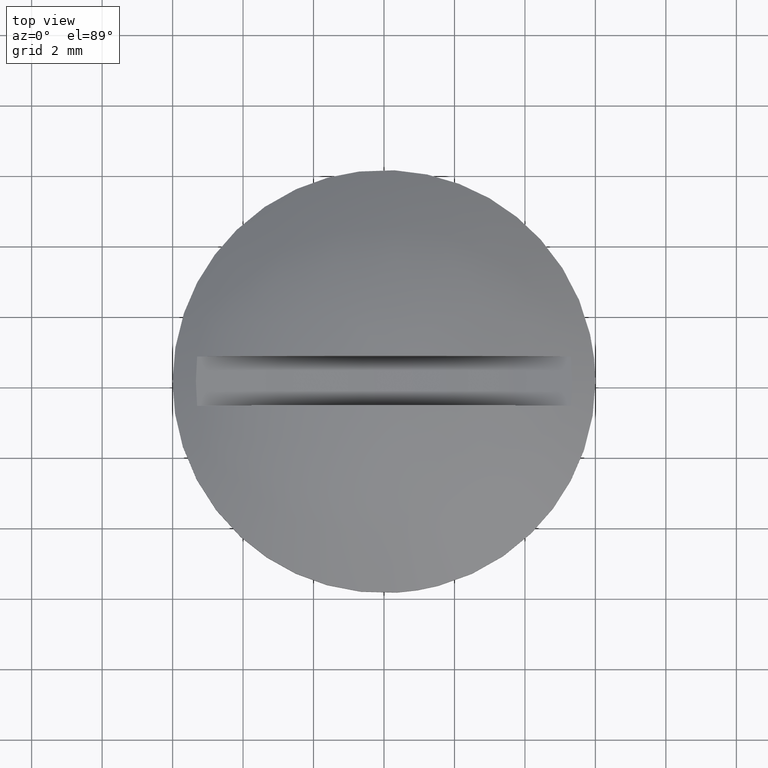
[diagram: clean part render]
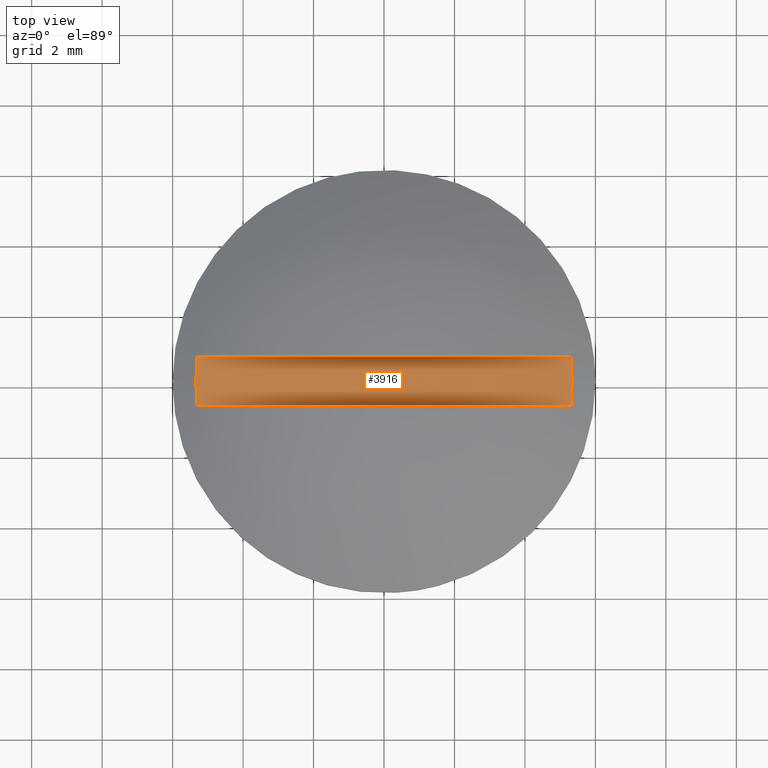
[diagram: same view with one face highlighted and labeled with its STEP entity id]
A machine part, top view. The second image highlights one B-rep face of the part: STEP entity #3916.
In plain terms, the highlighted face is a freeform B-spline surface patch.
Its self-contained STEP definition (entity closure, byte-faithful):
#3811=CARTESIAN_POINT('',(-5.303562853731459,-0.699997000000000,0.871922437406934));
#3812=VERTEX_POINT('',#3811);
#3813=CARTESIAN_POINT('',(5.303562853731459,-0.699997000000000,0.871922437406934));
#3814=VERTEX_POINT('',#3813);
#3815=CARTESIAN_POINT('',(-5.303562853731460,-0.699997000000008,0.871922437406934));
#3816=CARTESIAN_POINT('',(-7.806256E-015,-0.699997000000008,0.124401416789009));
#3817=CARTESIAN_POINT('',(5.303562853731451,-0.699997000000008,0.871922437406934));
#3825=(BOUNDED_CURVE()B_SPLINE_CURVE(2,(#3815,#3816,#3817),.UNSPECIFIED.,.F.,.U.)CURVE()GEOMETRIC_REPRESENTATION_ITEM()QUASI_UNIFORM_CURVE()RATIONAL_B_SPLINE_CURVE((1.0,0.990212567436660,1.0))REPRESENTATION_ITEM(''));
#3826=EDGE_CURVE('',#3812,#3814,#3825,.T.);
#3849=CARTESIAN_POINT('',(5.303562853731459,0.699996999999907,0.871922437406934));
#3850=VERTEX_POINT('',#3849);
#3851=CARTESIAN_POINT('',(-5.303562853731459,0.699996999999907,0.871922437406934));
#3852=VERTEX_POINT('',#3851);
#3866=CARTESIAN_POINT('',(-5.303562853731460,0.699996999999897,0.871922437406934));
#3867=CARTESIAN_POINT('',(-7.806256E-015,0.699996999999897,0.124401416789009));
#3868=CARTESIAN_POINT('',(5.303562853731459,0.699996999999907,0.871922437406934));
#3876=(BOUNDED_CURVE()B_SPLINE_CURVE(2,(#3866,#3867,#3868),.UNSPECIFIED.,.F.,.U.)CURVE()GEOMETRIC_REPRESENTATION_ITEM()QUASI_UNIFORM_CURVE()RATIONAL_B_SPLINE_CURVE((1.0,0.990212567436660,1.0))REPRESENTATION_ITEM(''));
#3877=EDGE_CURVE('',#3852,#3850,#3876,.T.);
#3882=CARTESIAN_POINT('',(5.866867494167028,0.734996849999905,0.955628040864970));
#3883=CARTESIAN_POINT('',(5.866867494167028,-0.735871846250006,0.955628040864970));
#3884=CARTESIAN_POINT('',(-0.000333142032202,0.734996849999905,0.038790525731146));
#3885=CARTESIAN_POINT('',(-0.000333142032202,-0.735871846250006,0.038790525731146));
#3886=CARTESIAN_POINT('',(-5.867517894485312,0.734996849999905,0.955729681376240));
#3887=CARTESIAN_POINT('',(-5.867517894485312,-0.735871846250006,0.955729681376240));
#3895=(BOUNDED_SURFACE()B_SPLINE_SURFACE(1,2,((#3882,#3884,#3886),(#3883,#3885,#3887)),.UNSPECIFIED.,.F.,.F.,.U.)B_SPLINE_SURFACE_WITH_KNOTS((2,2),(3,3),(0.0,1.0),(1.097222078073025,12.902594101202491),.UNSPECIFIED.)GEOMETRIC_REPRESENTATION_ITEM()RATIONAL_B_SPLINE_SURFACE(((0.997451781298771,0.984854208158674,0.996163582421710),(0.997451781298771,0.984854208158674,0.996163582421710)))REPRESENTATION_ITEM('')SURFACE());
#3896=ORIENTED_EDGE('',*,*,#3877,.F.);
#3897=CARTESIAN_POINT('',(-5.303562853731472,-0.699997000000000,0.871922437406934));
#3898=CARTESIAN_POINT('',(-5.327837280465762,-0.466664666666683,0.875343843874204));
#3899=CARTESIAN_POINT('',(-5.351858492111501,-4.743385E-014,0.878765250341469));
#3900=CARTESIAN_POINT('',(-5.327837280465761,0.466664666666589,0.875343843874209));
#3901=CARTESIAN_POINT('',(-5.303562853731474,0.699996999999907,0.871922437406939));
#3902=B_SPLINE_CURVE_WITH_KNOTS('',3,(#3897,#3898,#3899,#3900,#3901),.UNSPECIFIED.,.F.,.U.,(4,1,4),(0.0,0.500000000000000,1.0),.UNSPECIFIED.);
#3903=EDGE_CURVE('',#3812,#3852,#3902,.T.);
#3904=ORIENTED_EDGE('',*,*,#3903,.F.);
#3905=ORIENTED_EDGE('',*,*,#3826,.T.);
#3906=CARTESIAN_POINT('',(5.303562853731459,0.699996999999907,0.871922437406934));
#3907=CARTESIAN_POINT('',(5.327837280465756,0.466664666666589,0.875343843874210));
#3908=CARTESIAN_POINT('',(5.351858492111494,-4.667490E-014,0.878765250341474));
#3909=CARTESIAN_POINT('',(5.327837280465755,-0.466664666666682,0.875343843874207));
#3910=CARTESIAN_POINT('',(5.303562853731465,-0.699997000000000,0.871922437406936));
#3911=B_SPLINE_CURVE_WITH_KNOTS('',3,(#3906,#3907,#3908,#3909,#3910),.UNSPECIFIED.,.F.,.U.,(4,1,4),(0.0,0.500000000000000,1.0),.UNSPECIFIED.);
#3912=EDGE_CURVE('',#3850,#3814,#3911,.T.);
#3913=ORIENTED_EDGE('',*,*,#3912,.F.);
#3914=EDGE_LOOP('',(#3896,#3904,#3905,#3913));
#3915=FACE_OUTER_BOUND('',#3914,.T.);
#3916=ADVANCED_FACE('',(#3915),#3895,.F.);